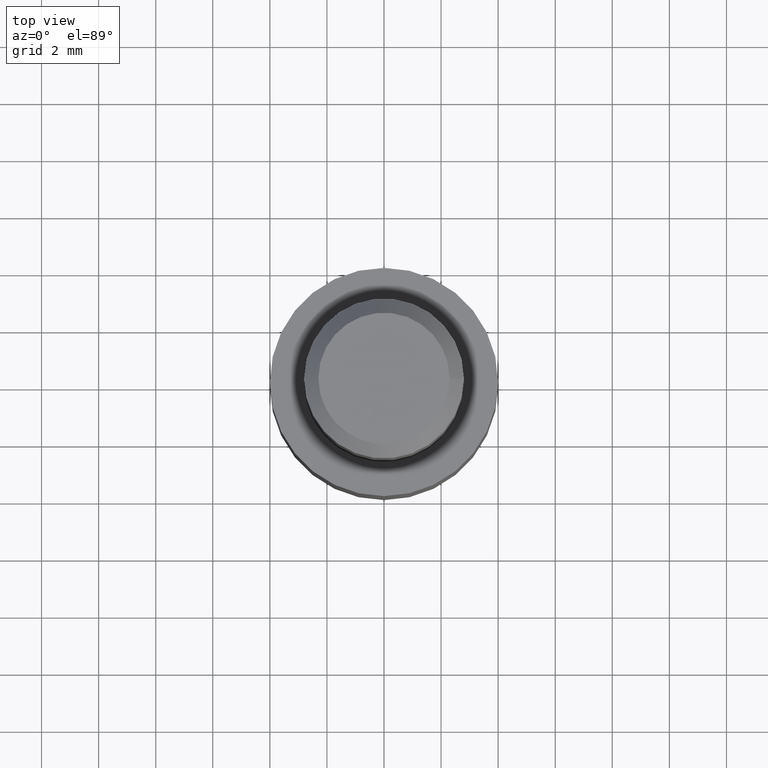
[diagram: clean part render]
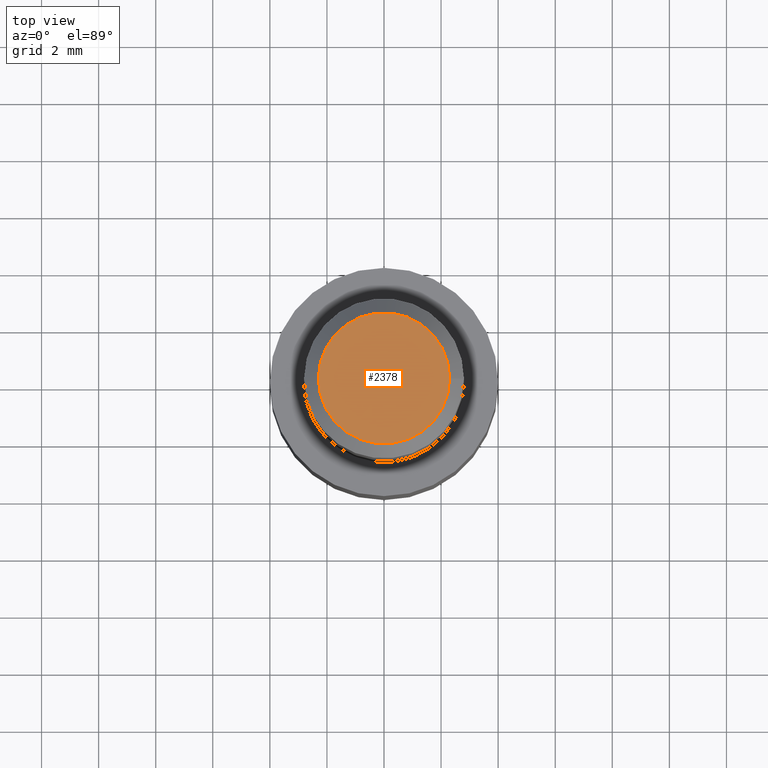
[diagram: same view with one face highlighted and labeled with its STEP entity id]
A machine part, top view. The second image highlights one B-rep face of the part: STEP entity #2378.
In plain terms, the highlighted planar face has unit normal (0, 0, 1).
Its self-contained STEP definition (entity closure, byte-faithful):
#1199 = DIRECTION ( 'NONE',  ( 1.000000000000000000, 0.000000000000000000, 0.000000000000000000 ) ) ;
#2120 = CARTESIAN_POINT ( 'NONE',  ( 2.299999999999996270, 0.000000000000000000, 23.00000000000000000 ) ) ;
#2378 = ADVANCED_FACE ( 'NONE', ( #6153 ), #12592, .T. ) ;
#5025 = DIRECTION ( 'NONE',  ( 1.000000000000000000, 0.000000000000000000, -0.000000000000000000 ) ) ;
#5341 = EDGE_CURVE ( 'NONE', #10831, #10831, #9207, .T. ) ;
#5677 = AXIS2_PLACEMENT_3D ( 'NONE', #11972, #6999, #1199 ) ;
#5932 = CARTESIAN_POINT ( 'NONE',  ( 0.000000000000000000, 0.000000000000000000, 23.00000000000000000 ) ) ;
#6153 = FACE_OUTER_BOUND ( 'NONE', #10929, .T. ) ;
#6999 = DIRECTION ( 'NONE',  ( 0.000000000000000000, 0.000000000000000000, 1.000000000000000000 ) ) ;
#9207 = CIRCLE ( 'NONE', #5677, 2.299999999999996270 ) ;
#10107 = AXIS2_PLACEMENT_3D ( 'NONE', #5932, #11877, #5025 ) ;
#10831 = VERTEX_POINT ( 'NONE', #2120 ) ;
#10929 = EDGE_LOOP ( 'NONE', ( #12014 ) ) ;
#11877 = DIRECTION ( 'NONE',  ( 0.000000000000000000, 0.000000000000000000, 1.000000000000000000 ) ) ;
#11972 = CARTESIAN_POINT ( 'NONE',  ( 0.000000000000000000, 0.000000000000000000, 23.00000000000000000 ) ) ;
#12014 = ORIENTED_EDGE ( 'NONE', *, *, #5341, .T. ) ;
#12592 = PLANE ( 'NONE',  #10107 ) ;